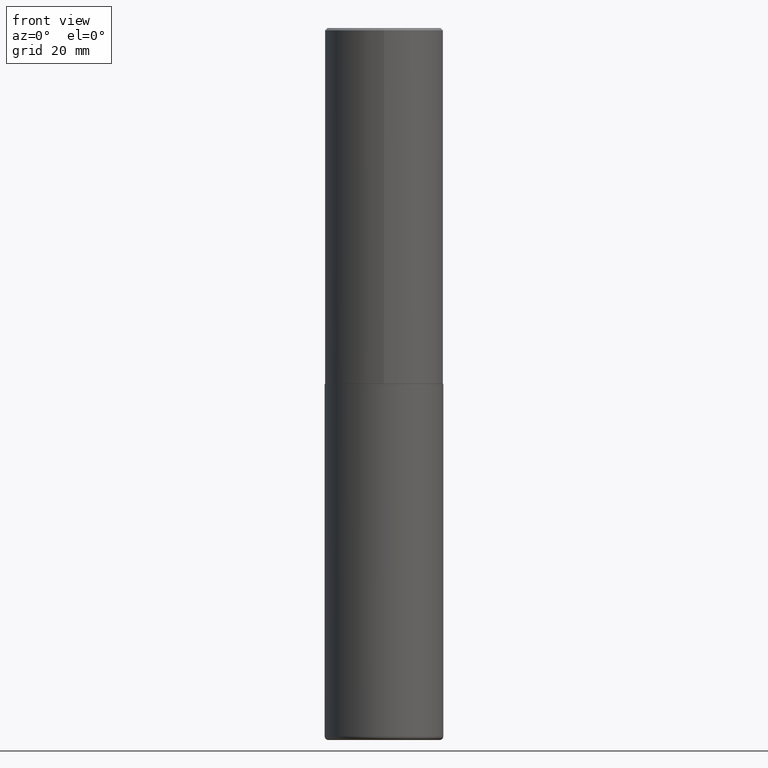
[diagram: clean part render]
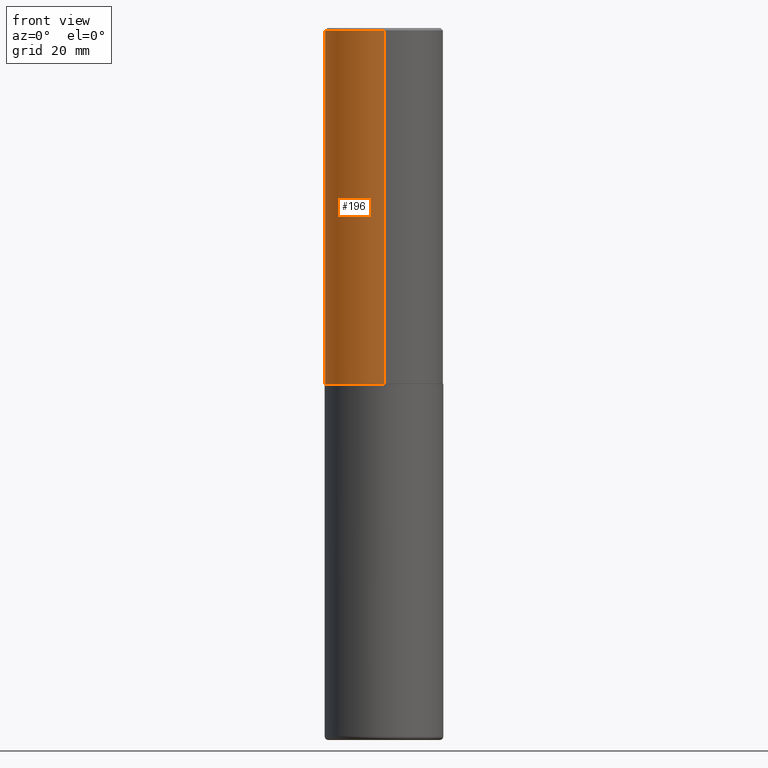
[diagram: same view with one face highlighted and labeled with its STEP entity id]
A machine part, front view. The second image highlights one B-rep face of the part: STEP entity #196.
In plain terms, the highlighted cylindrical surface (partial cylindrical patch) has radius 12.7 mm, axis along (-0, 0, 1).
Its self-contained STEP definition (entity closure, byte-faithful):
#17 = ORIENTED_EDGE ( 'NONE', *, *, #353, .F. ) ;
#28 = AXIS2_PLACEMENT_3D ( 'NONE', #249, #122, #67 ) ;
#37 = DIRECTION ( 'NONE',  ( -2.444898033699712212E-29, 3.492298717528625990E-15, 1.000000000000000000 ) ) ;
#45 = EDGE_CURVE ( 'NONE', #276, #225, #333, .T. ) ;
#47 = CARTESIAN_POINT ( 'NONE',  ( -3.491481338843133750E-15, -0.5000000000000001110, 1.746149358764313390E-15 ) ) ;
#49 = CARTESIAN_POINT ( 'NONE',  ( -3.491481338843061569E-15, -0.5000000000000107692, -2.998999999999998778 ) ) ;
#50 = DIRECTION ( 'NONE',  ( -2.444898033699711931E-29, 3.492298717528626385E-15, 1.000000000000000000 ) ) ;
#64 = CYLINDRICAL_SURFACE ( 'NONE', #184, 0.5000000000000001110 ) ;
#67 = DIRECTION ( 'NONE',  ( -6.982962677686266711E-15, -1.000000000000000000, 3.278217592397114284E-15 ) ) ;
#68 = CARTESIAN_POINT ( 'NONE',  ( 0.000000000000000000, 0.000000000000000000, 0.000000000000000000 ) ) ;
#76 = VERTEX_POINT ( 'NONE', #132 ) ;
#91 = CARTESIAN_POINT ( 'NONE',  ( -3.430248998885764992E-15, -0.5000000000000001110, -0.01999999999999835937 ) ) ;
#93 = ORIENTED_EDGE ( 'NONE', *, *, #180, .T. ) ;
#99 = CIRCLE ( 'NONE', #288, 0.5000000000000000000 ) ;
#106 = LINE ( 'NONE', #328, #364 ) ;
#122 = DIRECTION ( 'NONE',  ( -2.444898033699712212E-29, 3.492298717528625990E-15, 1.000000000000000000 ) ) ;
#127 = ORIENTED_EDGE ( 'NONE', *, *, #45, .T. ) ;
#132 = CARTESIAN_POINT ( 'NONE',  ( 3.491481338843133355E-15, 0.4999999999999999445, -0.02000000000000185310 ) ) ;
#134 = CARTESIAN_POINT ( 'NONE',  ( 3.552713678800539584E-15, 0.4999999999999898970, -2.999000000000001886 ) ) ;
#136 = VECTOR ( 'NONE', #50, 39.37007874015748143 ) ;
#145 = FACE_OUTER_BOUND ( 'NONE', #204, .T. ) ;
#158 = ORIENTED_EDGE ( 'NONE', *, *, #334, .F. ) ;
#180 = EDGE_CURVE ( 'NONE', #365, #276, #201, .T. ) ;
#184 = AXIS2_PLACEMENT_3D ( 'NONE', #68, #395, #360 ) ;
#196 = ADVANCED_FACE ( 'NONE', ( #145 ), #64, .T. ) ;
#201 = CIRCLE ( 'NONE', #28, 0.5000000000000002220 ) ;
#204 = EDGE_LOOP ( 'NONE', ( #158, #93, #127, #17 ) ) ;
#225 = VERTEX_POINT ( 'NONE', #91 ) ;
#229 = DIRECTION ( 'NONE',  ( -6.982962677686265922E-15, -1.000000000000000000, 3.491643216902136408E-15 ) ) ;
#249 = CARTESIAN_POINT ( 'NONE',  ( 7.332249203065438921E-29, -1.047340385386834930E-14, -2.999000000000000554 ) ) ;
#265 = DIRECTION ( 'NONE',  ( -2.444898033699711931E-29, 3.492298717528626385E-15, 1.000000000000000000 ) ) ;
#276 = VERTEX_POINT ( 'NONE', #49 ) ;
#288 = AXIS2_PLACEMENT_3D ( 'NONE', #400, #37, #229 ) ;
#328 = CARTESIAN_POINT ( 'NONE',  ( 3.552713678800501718E-15, 0.5000000000000001110, -1.746149358764313390E-15 ) ) ;
#333 = LINE ( 'NONE', #47, #136 ) ;
#334 = EDGE_CURVE ( 'NONE', #365, #76, #106, .T. ) ;
#353 = EDGE_CURVE ( 'NONE', #76, #225, #99, .T. ) ;
#360 = DIRECTION ( 'NONE',  ( -6.982962677686265922E-15, -1.000000000000000000, 3.492298717528625990E-15 ) ) ;
#364 = VECTOR ( 'NONE', #265, 39.37007874015748143 ) ;
#365 = VERTEX_POINT ( 'NONE', #134 ) ;
#395 = DIRECTION ( 'NONE',  ( -2.444898033699712212E-29, 3.492298717528625990E-15, 1.000000000000000000 ) ) ;
#400 = CARTESIAN_POINT ( 'NONE',  ( 4.889796067399450837E-31, -6.984597435057287381E-17, -0.02000000000000010797 ) ) ;